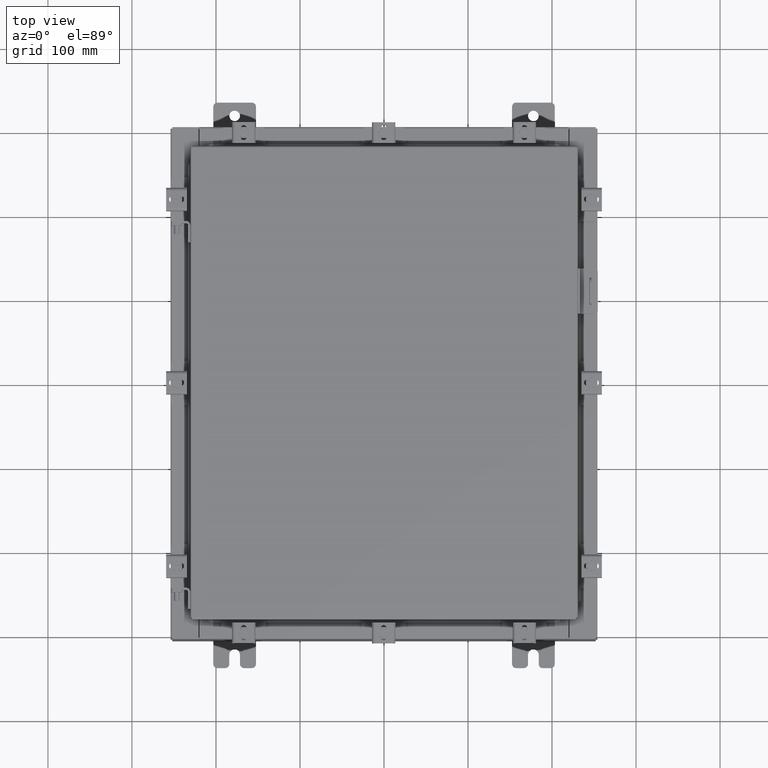
[diagram: clean part render]
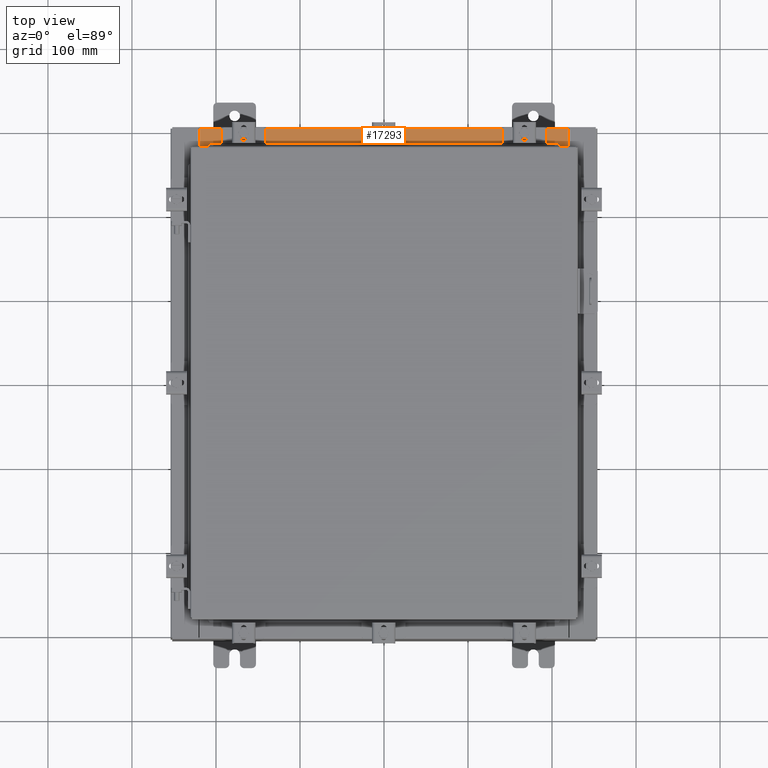
[diagram: same view with one face highlighted and labeled with its STEP entity id]
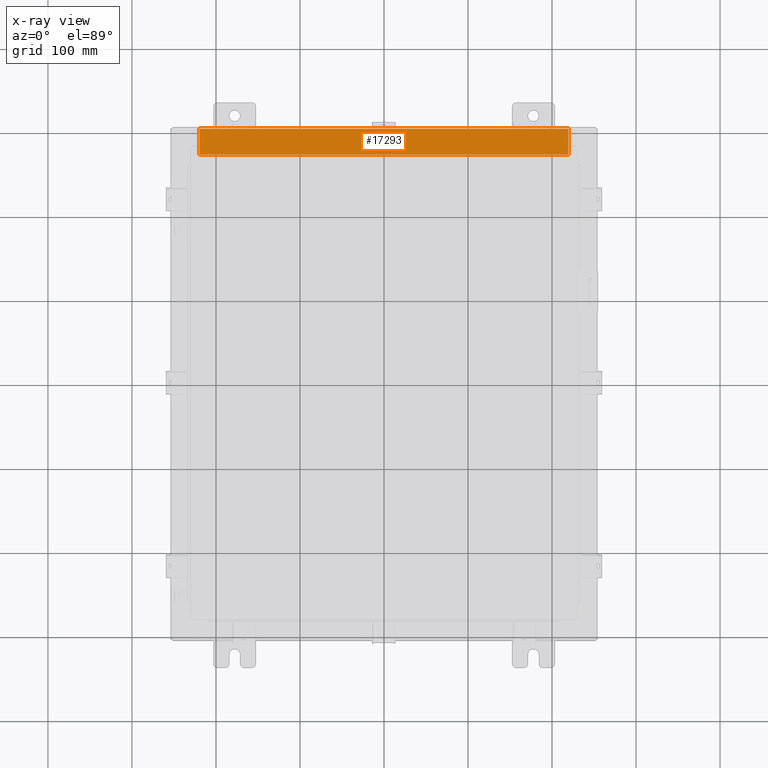
[diagram: x-ray of the same camera — body ghosted, the highlighted face saturated]
A machine part, top view. The second image highlights one B-rep face of the part: STEP entity #17293.
The next image is the same camera in x-ray: the body ghosted, the highlighted face saturated — about 0% of this face is hidden behind the body in this view.
In plain terms, the highlighted planar face has unit normal (0, 0, 1).
Its self-contained STEP definition (entity closure, byte-faithful):
#306 = DIRECTION ( 'NONE',  ( -0.0000000000000000000, -1.000000000000000000, 3.566381192773190000E-015 ) ) ;
#830 = EDGE_CURVE ( 'NONE', #15937, #14334, #15957, .T. ) ;
#1130 = EDGE_CURVE ( 'NONE', #14334, #21069, #7044, .T. ) ;
#1580 = ORIENTED_EDGE ( 'NONE', *, *, #10222, .T. ) ;
#1907 = ORIENTED_EDGE ( 'NONE', *, *, #830, .F. ) ;
#2403 = VECTOR ( 'NONE', #17357, 39.37007874015748100 ) ;
#4079 = DIRECTION ( 'NONE',  ( 0.0000000000000000000, -1.000000000000000000, 3.566381192773190000E-015 ) ) ;
#5630 = CARTESIAN_POINT ( 'NONE',  ( 8.637200000000000000, -1.300299999999999800, 3.000000000000005300 ) ) ;
#6228 = VECTOR ( 'NONE', #6520, 39.37007874015748100 ) ;
#6520 = DIRECTION ( 'NONE',  ( -1.000000000000000000, 3.162886113166609200E-017, -1.128005754888089100E-031 ) ) ;
#7044 = LINE ( 'NONE', #12245, #2403 ) ;
#7599 = EDGE_CURVE ( 'NONE', #21069, #22319, #21550, .T. ) ;
#9369 = ORIENTED_EDGE ( 'NONE', *, *, #1130, .F. ) ;
#9442 = CARTESIAN_POINT ( 'NONE',  ( 8.637200000000000000, -0.08769999999999965300, 3.000000000000000900 ) ) ;
#10069 = CARTESIAN_POINT ( 'NONE',  ( 8.637200000000000000, -1.287299999999999900, 3.000000000000005300 ) ) ;
#10183 = CARTESIAN_POINT ( 'NONE',  ( -8.637200000000000000, -0.08770000000000000000, 3.000000000000000900 ) ) ;
#10222 = EDGE_CURVE ( 'NONE', #15937, #22319, #15423, .T. ) ;
#10965 = PLANE ( 'NONE',  #12023 ) ;
#11371 = FACE_OUTER_BOUND ( 'NONE', #16632, .T. ) ;
#11383 = VECTOR ( 'NONE', #306, 39.37007874015748100 ) ;
#12023 = AXIS2_PLACEMENT_3D ( 'NONE', #12701, #14454, #4079 ) ;
#12245 = CARTESIAN_POINT ( 'NONE',  ( 8.637200000000000000, -1.287299999999999900, 3.000000000000005300 ) ) ;
#12701 = CARTESIAN_POINT ( 'NONE',  ( 0.0000000000000000000, 1.069354855923099900E-014, 3.000000000000000900 ) ) ;
#14334 = VERTEX_POINT ( 'NONE', #10069 ) ;
#14454 = DIRECTION ( 'NONE',  ( 0.0000000000000000000, 3.566381192773190000E-015, 1.000000000000000000 ) ) ;
#15423 = LINE ( 'NONE', #20338, #6228 ) ;
#15937 = VERTEX_POINT ( 'NONE', #9442 ) ;
#15957 = LINE ( 'NONE', #5630, #11383 ) ;
#16632 = EDGE_LOOP ( 'NONE', ( #16722, #9369, #1907, #1580 ) ) ;
#16722 = ORIENTED_EDGE ( 'NONE', *, *, #7599, .F. ) ;
#16823 = DIRECTION ( 'NONE',  ( -0.0000000000000000000, 1.000000000000000000, -3.566381192773190000E-015 ) ) ;
#16847 = VECTOR ( 'NONE', #16823, 39.37007874015748100 ) ;
#17293 = ADVANCED_FACE ( 'NONE', ( #11371 ), #10965, .T. ) ;
#17325 = CARTESIAN_POINT ( 'NONE',  ( -8.637200000000000000, -1.287299999999999200, 3.000000000000005300 ) ) ;
#17357 = DIRECTION ( 'NONE',  ( -1.000000000000000000, 0.0000000000000000000, 0.0000000000000000000 ) ) ;
#18581 = CARTESIAN_POINT ( 'NONE',  ( -8.637200000000000000, -0.07469999999999973900, 3.000000000000000900 ) ) ;
#20338 = CARTESIAN_POINT ( 'NONE',  ( -2.773851121247453900E-018, -0.08770000000000000000, 3.000000000000001300 ) ) ;
#21069 = VERTEX_POINT ( 'NONE', #17325 ) ;
#21550 = LINE ( 'NONE', #18581, #16847 ) ;
#22319 = VERTEX_POINT ( 'NONE', #10183 ) ;